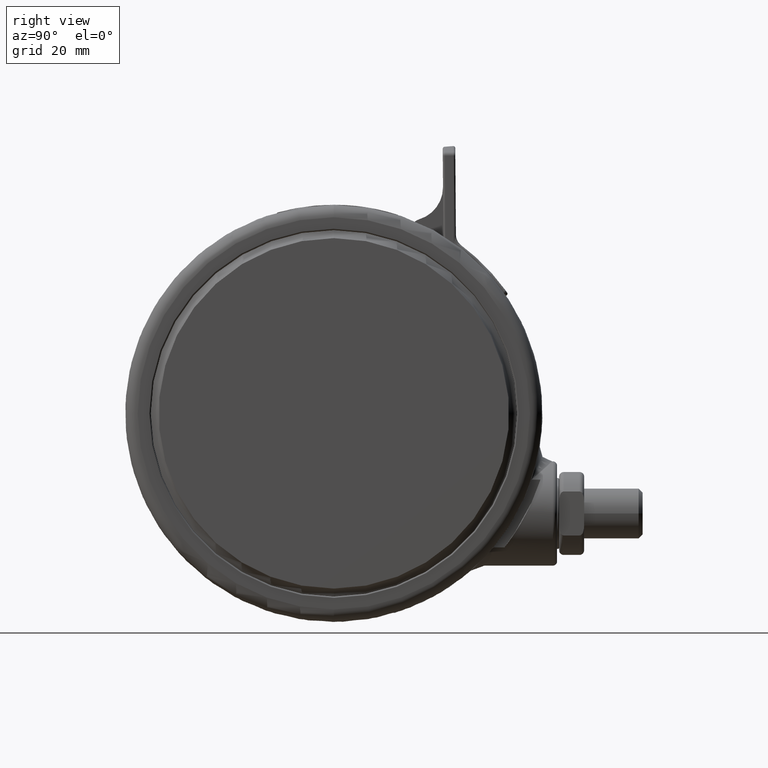
[diagram: clean part render]
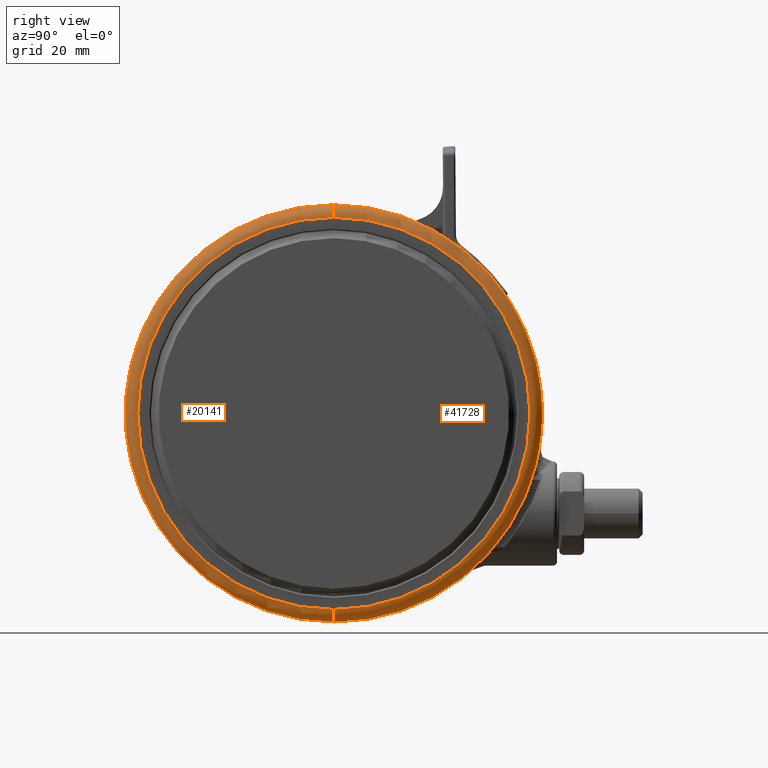
[diagram: same view with one multi-face feature highlighted, each face labeled with its STEP entity id]
A machine part, right view. The highlighted faces form ONE feature: a constant-radius fillet chain: 2 tangent blend faces with common blend radius 3 mm. The faces share edges in the B-rep.
Their STEP definitions:
[1] entity #20141 (Torus):
#856 = FACE_OUTER_BOUND ( 'NONE', #14262, .T. ) ;
#2536 = CARTESIAN_POINT ( 'NONE',  ( -47.00000000000001400, -1.172523862411199300E-014, -2.099999999999937900 ) ) ;
#2798 = DIRECTION ( 'NONE',  ( -2.126349141558171900E-017, -1.337754666183254700E-016, -1.000000000000000000 ) ) ;
#3466 = DIRECTION ( 'NONE',  ( 1.000000000000000000, 1.509229262741580100E-016, -1.845450506358305400E-017 ) ) ;
#3542 = AXIS2_PLACEMENT_3D ( 'NONE', #22251, #48662, #26091 ) ;
#3866 = ORIENTED_EDGE ( 'NONE', *, *, #8999, .F. ) ;
#5062 = AXIS2_PLACEMENT_3D ( 'NONE', #19838, #46291, #23663 ) ;
#5997 = VERTEX_POINT ( 'NONE', #17952 ) ;
#6604 = DIRECTION ( 'NONE',  ( 2.733876061888933300E-016, -1.000000000000000000, 1.337754666183254700E-016 ) ) ;
#8258 = VERTEX_POINT ( 'NONE', #9302 ) ;
#8999 = EDGE_CURVE ( 'NONE', #8258, #26074, #38277, .T. ) ;
#9302 = CARTESIAN_POINT ( 'NONE',  ( 46.99999999999998600, 8.828101010862234300E-015, -2.099999999999939700 ) ) ;
#10999 = ORIENTED_EDGE ( 'NONE', *, *, #18561, .F. ) ;
#13095 = AXIS2_PLACEMENT_3D ( 'NONE', #21596, #2798, #29234 ) ;
#14262 = EDGE_LOOP ( 'NONE', ( #46683, #3866, #27999, #10999 ) ) ;
#17952 = CARTESIAN_POINT ( 'NONE',  ( 49.99999999999998600, 8.879543389829747400E-015, -5.099999999999829100 ) ) ;
#18302 = AXIS2_PLACEMENT_3D ( 'NONE', #29259, #6604, #33032 ) ;
#18561 = EDGE_CURVE ( 'NONE', #24299, #5997, #31935, .T. ) ;
#19838 = CARTESIAN_POINT ( 'NONE',  ( 46.99999999999998600, 8.426774611007273000E-015, -5.099999999999829100 ) ) ;
#20141 = ADVANCED_FACE ( 'NONE', ( #856 ), #29795, .T. ) ;
#21596 = CARTESIAN_POINT ( 'NONE',  ( -1.394157828206119900E-014, 1.333397076121845300E-015, -5.099999999999828200 ) ) ;
#22251 = CARTESIAN_POINT ( 'NONE',  ( -1.394157828206119900E-014, 1.333397076121845300E-015, -5.099999999999828200 ) ) ;
#23663 = DIRECTION ( 'NONE',  ( -1.000000000000000000, -1.509229262741580100E-016, 0.0000000000000000000 ) ) ;
#24200 = EDGE_CURVE ( 'NONE', #8258, #5997, #47795, .T. ) ;
#24299 = VERTEX_POINT ( 'NONE', #39480 ) ;
#26074 = VERTEX_POINT ( 'NONE', #2536 ) ;
#26091 = DIRECTION ( 'NONE',  ( 1.000000000000000000, 1.509229262741580400E-016, -1.734723475976807100E-017 ) ) ;
#26126 = DIRECTION ( 'NONE',  ( 2.126349141558171900E-017, 1.337754666183254700E-016, 1.000000000000000000 ) ) ;
#27999 = ORIENTED_EDGE ( 'NONE', *, *, #24200, .T. ) ;
#29234 = DIRECTION ( 'NONE',  ( 1.000000000000000000, 1.509229262741580100E-016, -2.126349141558173700E-017 ) ) ;
#29259 = CARTESIAN_POINT ( 'NONE',  ( -47.00000000000001400, -1.151582041475614100E-014, -5.099999999999827300 ) ) ;
#29795 = TOROIDAL_SURFACE ( 'NONE', #13095, 47.00000000000000000, 3.000000000000000000 ) ;
#31935 = CIRCLE ( 'NONE', #3542, 50.00000000000000000 ) ;
#33032 = DIRECTION ( 'NONE',  ( 1.000000000000000000, 2.733876061888929400E-016, 0.0000000000000000000 ) ) ;
#38277 = CIRCLE ( 'NONE', #43007, 47.00000000000000000 ) ;
#39480 = CARTESIAN_POINT ( 'NONE',  ( -50.00000000000001400, -1.233598323332281900E-014, -5.099999999999827300 ) ) ;
#43007 = AXIS2_PLACEMENT_3D ( 'NONE', #48697, #26126, #3466 ) ;
#45129 = CIRCLE ( 'NONE', #18302, 3.000000000000002700 ) ;
#46291 = DIRECTION ( 'NONE',  ( -1.509229262741580100E-016, 1.000000000000000000, -1.337754666183254700E-016 ) ) ;
#46683 = ORIENTED_EDGE ( 'NONE', *, *, #47199, .F. ) ;
#47199 = EDGE_CURVE ( 'NONE', #26074, #24299, #45129, .T. ) ;
#47795 = CIRCLE ( 'NONE', #5062, 3.000000000000002700 ) ;
#48662 = DIRECTION ( 'NONE',  ( -2.126349141558171900E-017, -1.337754666183254700E-016, -1.000000000000000000 ) ) ;
#48697 = CARTESIAN_POINT ( 'NONE',  ( -1.387778780781445700E-014, 1.734723475976807100E-015, -2.099999999999938800 ) ) ;
[2] entity #41728 (Torus):
#2536 = CARTESIAN_POINT ( 'NONE',  ( -47.00000000000001400, -1.172523862411199300E-014, -2.099999999999937900 ) ) ;
#5030 = DIRECTION ( 'NONE',  ( -2.126349141558171900E-017, -1.337754666183254700E-016, -1.000000000000000000 ) ) ;
#5062 = AXIS2_PLACEMENT_3D ( 'NONE', #19838, #46291, #23663 ) ;
#5997 = VERTEX_POINT ( 'NONE', #17952 ) ;
#6604 = DIRECTION ( 'NONE',  ( 2.733876061888933300E-016, -1.000000000000000000, 1.337754666183254700E-016 ) ) ;
#7776 = ORIENTED_EDGE ( 'NONE', *, *, #47199, .T. ) ;
#8258 = VERTEX_POINT ( 'NONE', #9302 ) ;
#9302 = CARTESIAN_POINT ( 'NONE',  ( 46.99999999999998600, 8.828101010862234300E-015, -2.099999999999939700 ) ) ;
#11802 = DIRECTION ( 'NONE',  ( -2.126349141558171900E-017, -1.337754666183254700E-016, -1.000000000000000000 ) ) ;
#12481 = CARTESIAN_POINT ( 'NONE',  ( -1.387778780781445700E-014, 1.734723475976807100E-015, -2.099999999999938800 ) ) ;
#13968 = AXIS2_PLACEMENT_3D ( 'NONE', #19728, #5030, #39046 ) ;
#14890 = FACE_OUTER_BOUND ( 'NONE', #19227, .T. ) ;
#16289 = DIRECTION ( 'NONE',  ( 1.000000000000000000, 1.509229262741580100E-016, -1.845450506358305400E-017 ) ) ;
#17952 = CARTESIAN_POINT ( 'NONE',  ( 49.99999999999998600, 8.879543389829747400E-015, -5.099999999999829100 ) ) ;
#18302 = AXIS2_PLACEMENT_3D ( 'NONE', #29259, #6604, #33032 ) ;
#19227 = EDGE_LOOP ( 'NONE', ( #40830, #7776, #36261, #27525 ) ) ;
#19728 = CARTESIAN_POINT ( 'NONE',  ( -1.394157828206119900E-014, 1.333397076121845300E-015, -5.099999999999828200 ) ) ;
#19838 = CARTESIAN_POINT ( 'NONE',  ( 46.99999999999998600, 8.426774611007273000E-015, -5.099999999999829100 ) ) ;
#23663 = DIRECTION ( 'NONE',  ( -1.000000000000000000, -1.509229262741580100E-016, 0.0000000000000000000 ) ) ;
#23704 = EDGE_CURVE ( 'NONE', #26074, #8258, #37131, .T. ) ;
#24200 = EDGE_CURVE ( 'NONE', #8258, #5997, #47795, .T. ) ;
#24299 = VERTEX_POINT ( 'NONE', #39480 ) ;
#26074 = VERTEX_POINT ( 'NONE', #2536 ) ;
#27525 = ORIENTED_EDGE ( 'NONE', *, *, #24200, .F. ) ;
#29221 = EDGE_CURVE ( 'NONE', #5997, #24299, #31993, .T. ) ;
#29259 = CARTESIAN_POINT ( 'NONE',  ( -47.00000000000001400, -1.151582041475614100E-014, -5.099999999999827300 ) ) ;
#30697 = AXIS2_PLACEMENT_3D ( 'NONE', #12481, #38886, #16289 ) ;
#31993 = CIRCLE ( 'NONE', #36897, 50.00000000000000000 ) ;
#33032 = DIRECTION ( 'NONE',  ( 1.000000000000000000, 2.733876061888929400E-016, 0.0000000000000000000 ) ) ;
#34426 = CARTESIAN_POINT ( 'NONE',  ( -1.394157828206119900E-014, 1.333397076121845300E-015, -5.099999999999828200 ) ) ;
#34976 = TOROIDAL_SURFACE ( 'NONE', #13968, 47.00000000000000000, 3.000000000000000000 ) ;
#36261 = ORIENTED_EDGE ( 'NONE', *, *, #29221, .F. ) ;
#36897 = AXIS2_PLACEMENT_3D ( 'NONE', #34426, #11802, #38211 ) ;
#37131 = CIRCLE ( 'NONE', #30697, 47.00000000000000000 ) ;
#38211 = DIRECTION ( 'NONE',  ( 1.000000000000000000, 1.509229262741580400E-016, -1.734723475976807100E-017 ) ) ;
#38886 = DIRECTION ( 'NONE',  ( 2.126349141558171900E-017, 1.337754666183254700E-016, 1.000000000000000000 ) ) ;
#39046 = DIRECTION ( 'NONE',  ( 1.000000000000000000, 1.509229262741580100E-016, -2.126349141558173700E-017 ) ) ;
#39480 = CARTESIAN_POINT ( 'NONE',  ( -50.00000000000001400, -1.233598323332281900E-014, -5.099999999999827300 ) ) ;
#40830 = ORIENTED_EDGE ( 'NONE', *, *, #23704, .F. ) ;
#41728 = ADVANCED_FACE ( 'NONE', ( #14890 ), #34976, .T. ) ;
#45129 = CIRCLE ( 'NONE', #18302, 3.000000000000002700 ) ;
#46291 = DIRECTION ( 'NONE',  ( -1.509229262741580100E-016, 1.000000000000000000, -1.337754666183254700E-016 ) ) ;
#47199 = EDGE_CURVE ( 'NONE', #26074, #24299, #45129, .T. ) ;
#47795 = CIRCLE ( 'NONE', #5062, 3.000000000000002700 ) ;